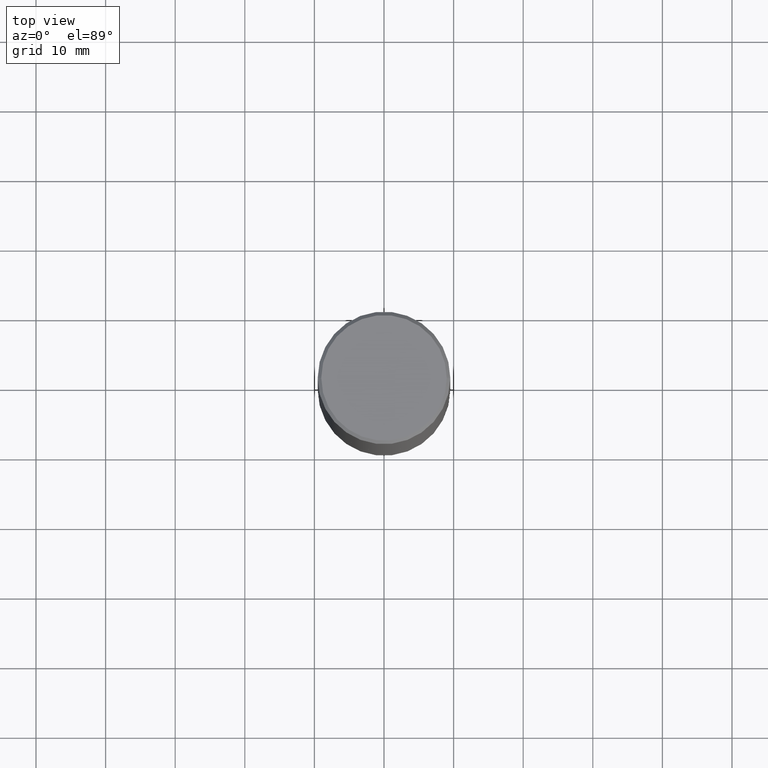
[diagram: clean part render]
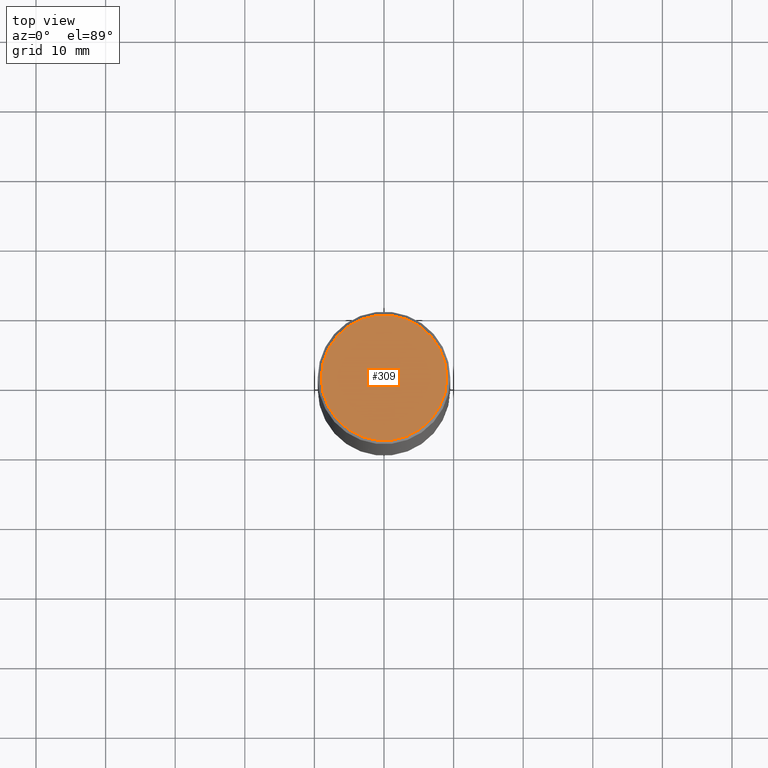
[diagram: same view with one face highlighted and labeled with its STEP entity id]
A machine part, top view. The second image highlights one B-rep face of the part: STEP entity #309.
In plain terms, the highlighted planar face has unit normal (0, -0, -1).
Its self-contained STEP definition (entity closure, byte-faithful):
#18 = AXIS2_PLACEMENT_3D ( 'NONE', #294, #44, #419 ) ;
#39 = CARTESIAN_POINT ( 'NONE',  ( -1.043851414335219820E-46, 1.490343170380447200E-32, 4.268512490100411279E-18 ) ) ;
#44 = DIRECTION ( 'NONE',  ( 2.438088387897960049E-29, -3.491481338843145188E-15, -1.000000000000000000 ) ) ;
#69 = DIRECTION ( 'NONE',  ( -2.445468806185136597E-29, 3.491481338843145583E-15, 1.000000000000000000 ) ) ;
#70 = EDGE_CURVE ( 'NONE', #209, #128, #343, .T. ) ;
#75 = AXIS2_PLACEMENT_3D ( 'NONE', #247, #99, #448 ) ;
#99 = DIRECTION ( 'NONE',  ( -2.445468806185136597E-29, 3.491481338843145583E-15, 1.000000000000000000 ) ) ;
#128 = VERTEX_POINT ( 'NONE', #137 ) ;
#137 = CARTESIAN_POINT ( 'NONE',  ( 0.3549999999999990941, -2.538996582575035132E-15, 4.268512490117958041E-18 ) ) ;
#141 = CARTESIAN_POINT ( 'NONE',  ( -0.3549999999999990941, 2.513866563967049153E-15, 4.268512490082953109E-18 ) ) ;
#162 = ORIENTED_EDGE ( 'NONE', *, *, #70, .T. ) ;
#195 = ORIENTED_EDGE ( 'NONE', *, *, #208, .T. ) ;
#208 = EDGE_CURVE ( 'NONE', #128, #209, #440, .T. ) ;
#209 = VERTEX_POINT ( 'NONE', #141 ) ;
#227 = PLANE ( 'NONE',  #18 ) ;
#247 = CARTESIAN_POINT ( 'NONE',  ( -1.043851414335219820E-46, 1.490343170380447200E-32, 4.268512490100411279E-18 ) ) ;
#263 = AXIS2_PLACEMENT_3D ( 'NONE', #39, #69, #300 ) ;
#278 = EDGE_LOOP ( 'NONE', ( #162, #195 ) ) ;
#294 = CARTESIAN_POINT ( 'NONE',  ( 2.478951750578617898E-15, 0.3549999999999990941, -1.237341619044263272E-15 ) ) ;
#300 = DIRECTION ( 'NONE',  ( 1.000000000000000000, -6.982962677686265133E-15, 4.876231632512000515E-29 ) ) ;
#309 = ADVANCED_FACE ( 'NONE', ( #420 ), #227, .F. ) ;
#343 = CIRCLE ( 'NONE', #75, 0.3549999999999990941 ) ;
#419 = DIRECTION ( 'NONE',  ( -1.000000000000000000, 6.982962677686265922E-15, -4.876176775795935793E-29 ) ) ;
#420 = FACE_OUTER_BOUND ( 'NONE', #278, .T. ) ;
#440 = CIRCLE ( 'NONE', #263, 0.3549999999999990941 ) ;
#448 = DIRECTION ( 'NONE',  ( 1.000000000000000000, -6.982962677686265133E-15, 4.876231632512000515E-29 ) ) ;